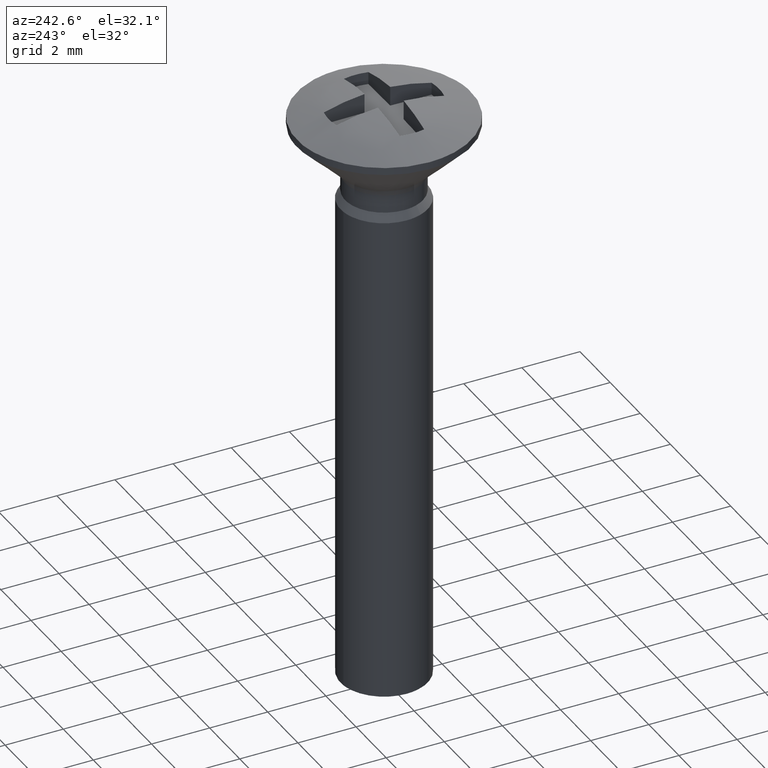
[diagram: clean part render]
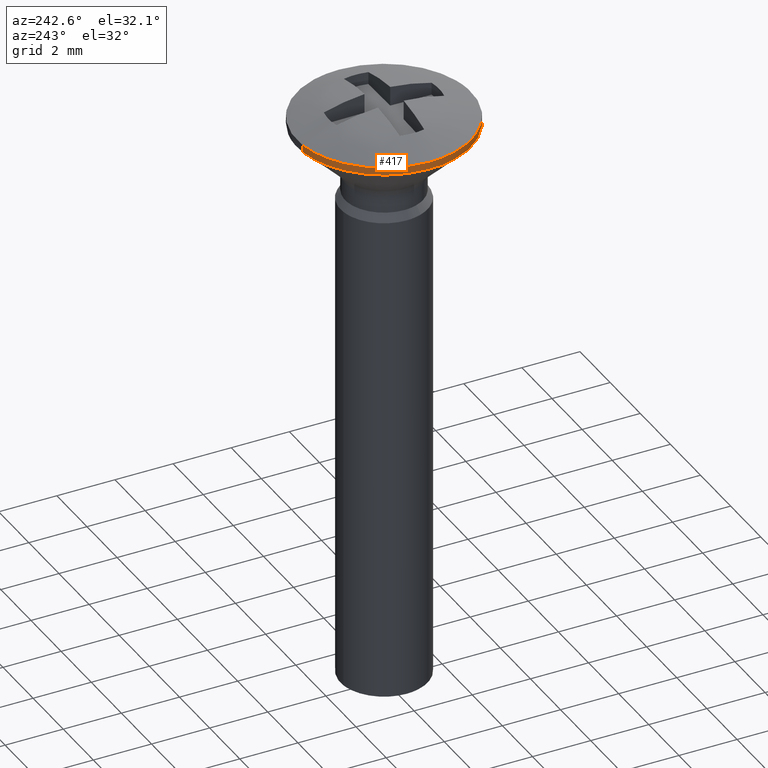
[diagram: same view with one face highlighted and labeled with its STEP entity id]
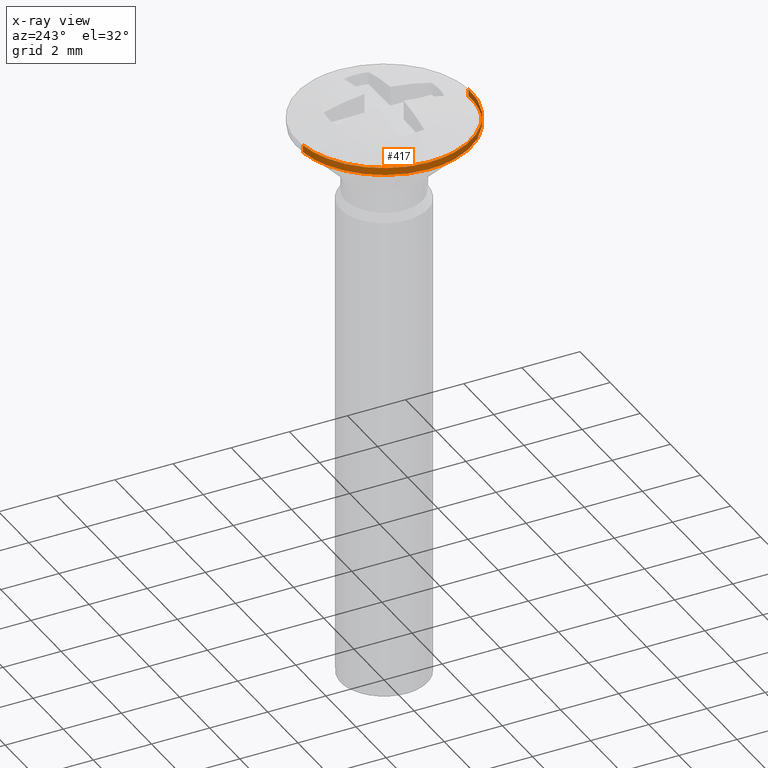
[diagram: x-ray of the same camera — body ghosted, the highlighted face saturated]
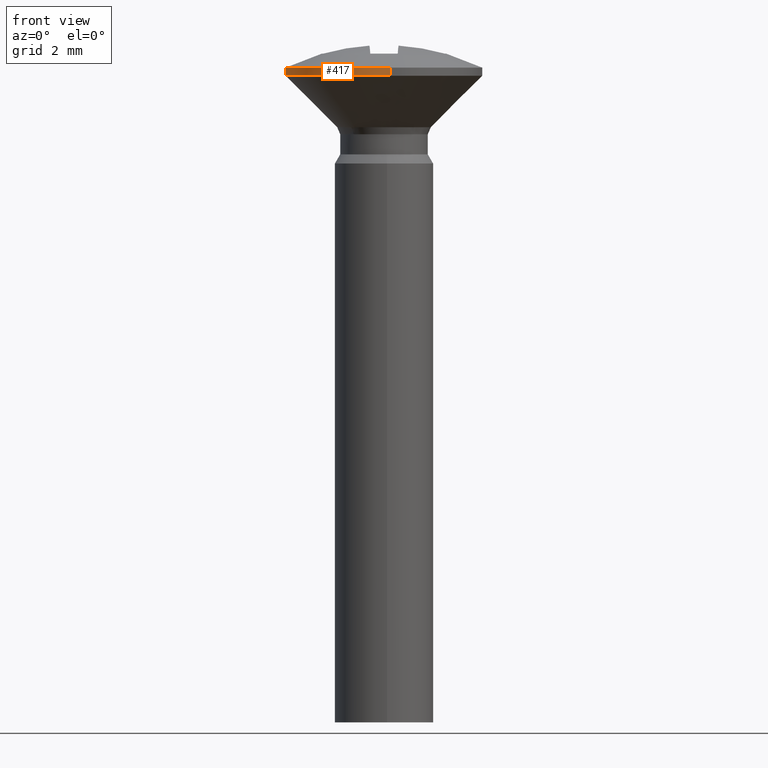
[diagram: same view with one face highlighted and labeled with its STEP entity id]
A machine part, auxiliary view. The second image highlights one B-rep face of the part: STEP entity #417.
The next image is the same camera in x-ray: the body ghosted, the highlighted face saturated — about 0% of this face is hidden behind the body in this view.
A second angle (front view) of the same face is appended — the face is thin or edge-on in the first view.
In plain terms, the highlighted face is a freeform B-spline surface patch.
Its self-contained STEP definition (entity closure, byte-faithful):
#66=CARTESIAN_POINT('',(0.183145739371230,-2.994406369537615,-0.249999999999993));
#67=VERTEX_POINT('',#66);
#68=CARTESIAN_POINT('',(-0.916022290355133,-2.856729452291915,-0.249999999996738));
#69=VERTEX_POINT('',#68);
#70=CARTESIAN_POINT('',(0.183145739371230,-2.994406369537616,-0.249999999999993));
#71=CARTESIAN_POINT('',(0.091658400837837,-3.000001813726419,-0.249999999999728));
#72=CARTESIAN_POINT('',(0.000000101023165,-3.000001651638165,-0.249999999999461));
#73=CARTESIAN_POINT('',(-0.469215216280595,-3.000000821879243,-0.249999999998093));
#74=CARTESIAN_POINT('',(-0.916022290355133,-2.856729452291915,-0.249999999996738));
#82=(BOUNDED_CURVE()B_SPLINE_CURVE(2,(#70,#71,#72,#73,#74),.UNSPECIFIED.,.F.,.U.)B_SPLINE_CURVE_WITH_KNOTS((3,2,3),(0.739332962241107,0.750000000000000,0.801933060485101),.UNSPECIFIED.)CURVE()GEOMETRIC_REPRESENTATION_ITEM()RATIONAL_B_SPLINE_CURVE((0.976072041671355,0.987502787902372,1.0,0.939156635006740,0.903591527247977))REPRESENTATION_ITEM(''));
#83=EDGE_CURVE('',#67,#69,#82,.T.);
#180=CARTESIAN_POINT('',(-3.0,0.0,-0.249999999999993));
#181=VERTEX_POINT('',#180);
#182=CARTESIAN_POINT('',(-0.916022290355133,-2.856729452291915,-0.249999999996738));
#183=CARTESIAN_POINT('',(-3.0,-2.188493251910522,-0.249999999999993));
#184=CARTESIAN_POINT('',(-3.0,0.0,-0.249999999999993));
#192=(BOUNDED_CURVE()B_SPLINE_CURVE(2,(#182,#183,#184),.UNSPECIFIED.,.F.,.U.)B_SPLINE_CURVE_WITH_KNOTS((3,3),(0.801933060485101,1.0),.UNSPECIFIED.)CURVE()GEOMETRIC_REPRESENTATION_ITEM()RATIONAL_B_SPLINE_CURVE((0.903591527247976,0.767950146179808,1.0))REPRESENTATION_ITEM(''));
#193=EDGE_CURVE('',#69,#181,#192,.T.);
#195=CARTESIAN_POINT('',(-0.354102937449944,2.979030543224859,-0.249999999999993));
#196=VERTEX_POINT('',#195);
#197=CARTESIAN_POINT('',(-3.0,0.0,-0.249999999999993));
#198=CARTESIAN_POINT('',(-3.000000116733629,2.664524559910591,-0.249999999999993));
#199=CARTESIAN_POINT('',(-0.354102937449944,2.979030543224859,-0.249999999999993));
#207=(BOUNDED_CURVE()B_SPLINE_CURVE(2,(#197,#198,#199),.UNSPECIFIED.,.F.,.U.)B_SPLINE_CURVE_WITH_KNOTS((3,3),(0.0,0.229562473514940),.UNSPECIFIED.)CURVE()GEOMETRIC_REPRESENTATION_ITEM()RATIONAL_B_SPLINE_CURVE((1.0,0.731050832853725,0.956026754186506))REPRESENTATION_ITEM(''));
#208=EDGE_CURVE('',#181,#196,#207,.T.);
#313=CARTESIAN_POINT('',(-0.354103404384466,2.979034471495527,-0.000000614545808));
#314=VERTEX_POINT('',#313);
#315=CARTESIAN_POINT('',(-0.354103404384466,2.979034471495527,-0.000000614545808));
#316=CARTESIAN_POINT('',(-0.354102937449944,2.979030543224859,-0.249999999999993));
#317=QUASI_UNIFORM_CURVE('',1,(#315,#316),.UNSPECIFIED.,.F.,.U.);
#318=EDGE_CURVE('',#314,#196,#317,.T.);
#337=CARTESIAN_POINT('',(0.183145980874648,-2.994410318083473,-0.000000614545808));
#338=VERTEX_POINT('',#337);
#352=CARTESIAN_POINT('',(0.183145980874648,-2.994410318083473,-0.000000614545808));
#353=CARTESIAN_POINT('',(0.183145739371230,-2.994406369537615,-0.249999999999993));
#354=QUASI_UNIFORM_CURVE('',1,(#352,#353),.UNSPECIFIED.,.F.,.U.);
#355=EDGE_CURVE('',#338,#67,#354,.T.);
#362=CARTESIAN_POINT('',(0.183145860107981,-2.994408343811458,0.006249370090547));
#363=CARTESIAN_POINT('',(-2.811262483703477,-3.177554203919440,0.006249370090547));
#364=CARTESIAN_POINT('',(-2.994408343811458,-0.183145860107981,0.006249370090547));
#365=CARTESIAN_POINT('',(-3.167362766808018,2.644633959837957,0.006249370090547));
#366=CARTESIAN_POINT('',(-0.354103170904791,2.979032507361668,0.006249370090547));
#367=CARTESIAN_POINT('',(0.183145860107981,-2.994408343811458,-0.256406234252257));
#368=CARTESIAN_POINT('',(-2.811262483703477,-3.177554203919440,-0.256406234252257));
#369=CARTESIAN_POINT('',(-2.994408343811458,-0.183145860107981,-0.256406234252257));
#370=CARTESIAN_POINT('',(-3.167362766808018,2.644633959837957,-0.256406234252257));
#371=CARTESIAN_POINT('',(-0.354103170904791,2.979032507361668,-0.256406234252257));
#379=(BOUNDED_SURFACE()B_SPLINE_SURFACE(2,1,((#362,#367),(#363,#368),(#364,#369),(#365,#370),(#366,#371)),.UNSPECIFIED.,.F.,.F.,.U.)B_SPLINE_SURFACE_WITH_KNOTS((3,2,3),(2,2),(0.0,4.970569302867383,9.742315833620070),(0.0,0.262655604342803),.UNSPECIFIED.)GEOMETRIC_REPRESENTATION_ITEM()RATIONAL_B_SPLINE_SURFACE(((1.0,1.0),(0.707106781186548,0.707106781186548),(1.0,1.0),(0.718822509939086,0.718822509939086),(0.977505800795127,0.977505800795127)))REPRESENTATION_ITEM('')SURFACE());
#380=ORIENTED_EDGE('',*,*,#208,.F.);
#381=ORIENTED_EDGE('',*,*,#193,.F.);
#382=ORIENTED_EDGE('',*,*,#83,.F.);
#383=ORIENTED_EDGE('',*,*,#355,.F.);
#384=CARTESIAN_POINT('',(-3.000007911848910,0.0,-0.000000614545808));
#385=VERTEX_POINT('',#384);
#386=CARTESIAN_POINT('',(0.183145980874648,-2.994410318083473,-0.000000614545808));
#387=CARTESIAN_POINT('',(0.091658412615683,-3.000005965947437,-0.000000614545808));
#388=CARTESIAN_POINT('',(-0.000000117171784,-3.000005996107184,-0.000000614545808));
#389=CARTESIAN_POINT('',(-3.000007968644840,-3.000006983243649,-0.000000614545808));
#390=CARTESIAN_POINT('',(-3.000007911848910,0.0,-0.000000614545808));
#398=(BOUNDED_CURVE()B_SPLINE_CURVE(2,(#386,#387,#388,#389,#390),.UNSPECIFIED.,.F.,.U.)B_SPLINE_CURVE_WITH_KNOTS((3,2,3),(0.739332962241106,0.750000000000000,1.0),.UNSPECIFIED.)CURVE()GEOMETRIC_REPRESENTATION_ITEM()RATIONAL_B_SPLINE_CURVE((0.976072041671354,0.987502787902372,1.0,0.707106781186547,1.0))REPRESENTATION_ITEM(''));
#399=EDGE_CURVE('',#338,#385,#398,.T.);
#400=ORIENTED_EDGE('',*,*,#399,.T.);
#401=CARTESIAN_POINT('',(-3.000007911848910,0.0,-0.000000614545808));
#402=CARTESIAN_POINT('',(-3.000007795115281,2.664529622877904,-0.000000614545808));
#403=CARTESIAN_POINT('',(-0.354103404384466,2.979034471495528,-0.000000614545808));
#411=(BOUNDED_CURVE()B_SPLINE_CURVE(2,(#401,#402,#403),.UNSPECIFIED.,.F.,.U.)B_SPLINE_CURVE_WITH_KNOTS((3,3),(0.0,0.229562473514940),.UNSPECIFIED.)CURVE()GEOMETRIC_REPRESENTATION_ITEM()RATIONAL_B_SPLINE_CURVE((1.0,0.731050832853725,0.956026754186505))REPRESENTATION_ITEM(''));
#412=EDGE_CURVE('',#385,#314,#411,.T.);
#413=ORIENTED_EDGE('',*,*,#412,.T.);
#414=ORIENTED_EDGE('',*,*,#318,.T.);
#415=EDGE_LOOP('',(#380,#381,#382,#383,#400,#413,#414));
#416=FACE_OUTER_BOUND('',#415,.T.);
#417=ADVANCED_FACE('',(#416),#379,.T.);